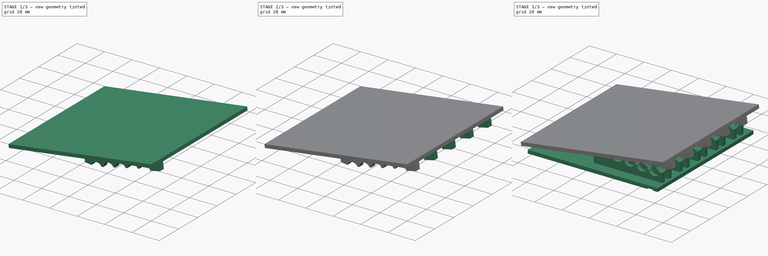
[diagram: build sequence overview — one tinted view per stage of 3, left to right]
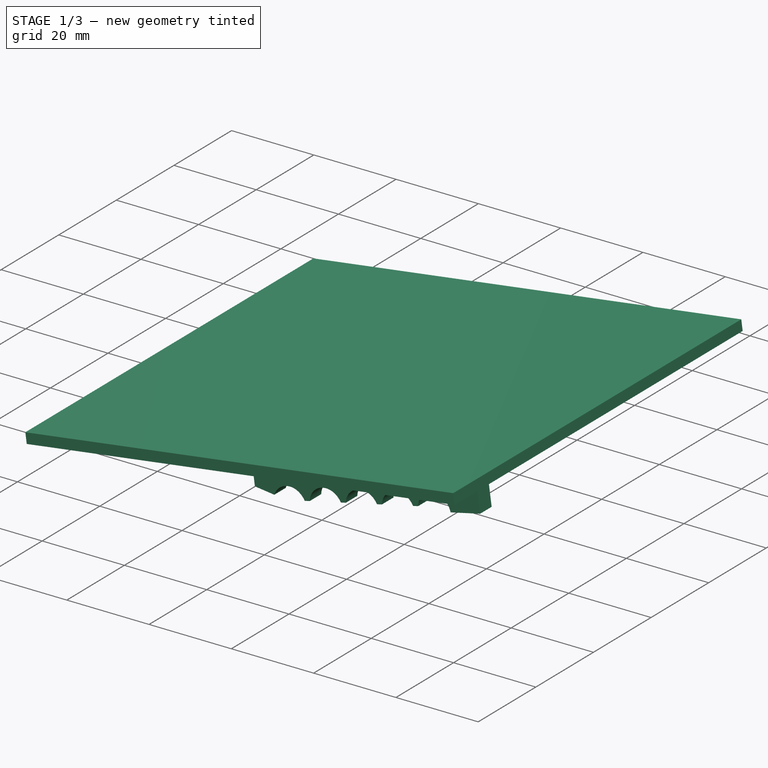
[diagram: stage 1 of 3 — iso view after this stage's code; geometry added in this stage tinted green]
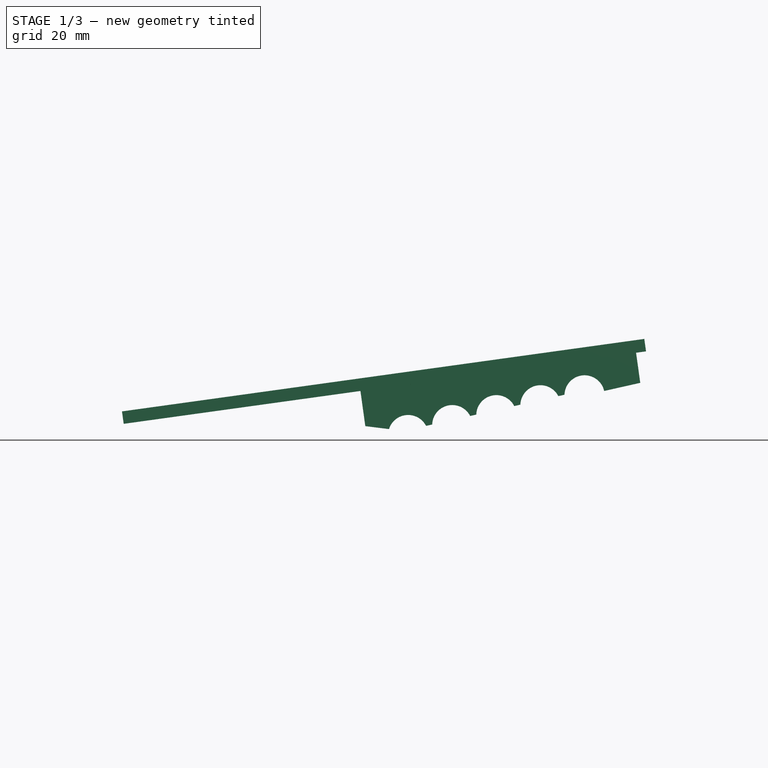
[diagram: stage 1 of 3 — front view after this stage's code; geometry added in this stage tinted green]
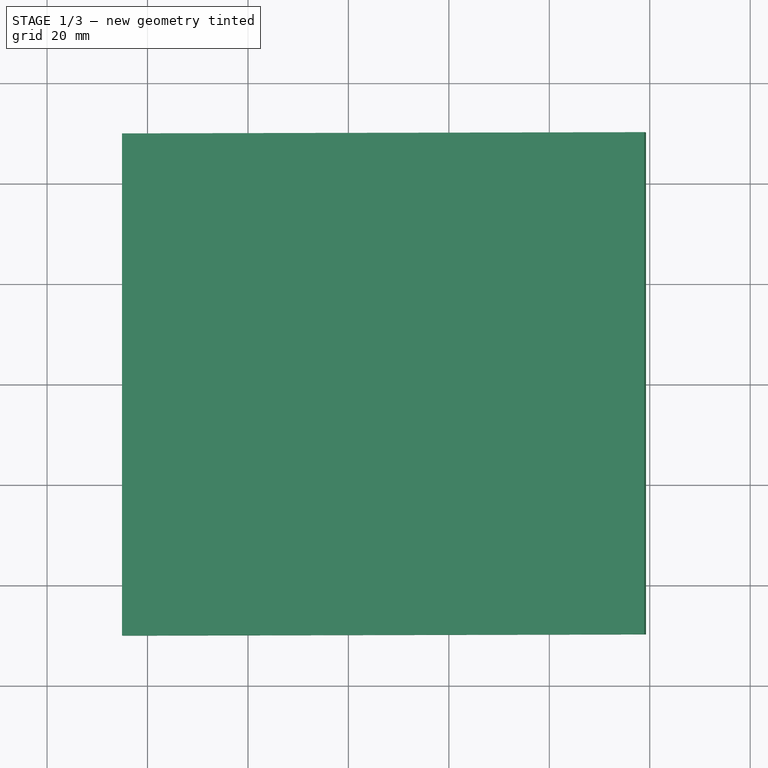
[diagram: stage 1 of 3 — top view after this stage's code; geometry added in this stage tinted green]
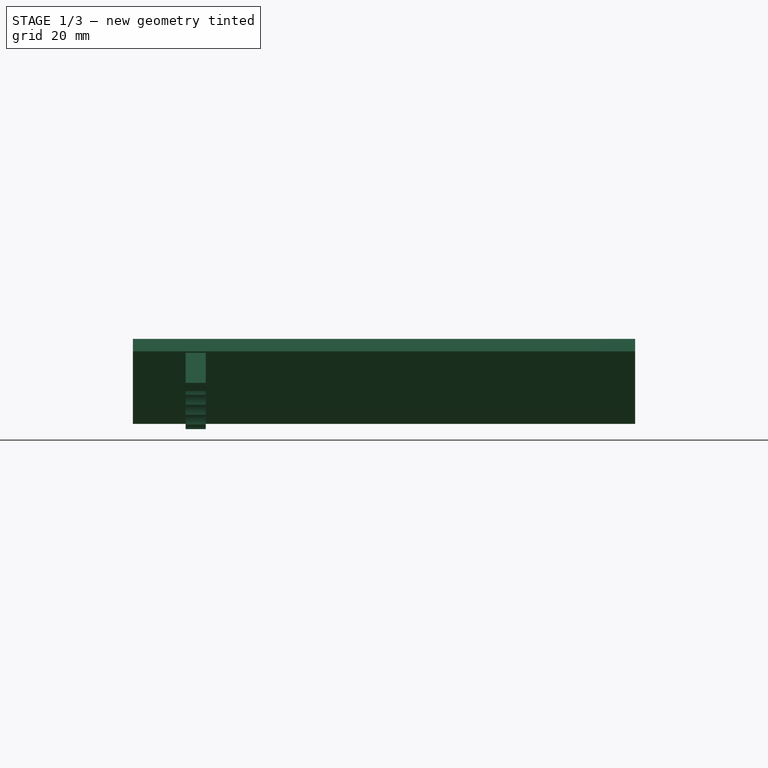
[diagram: stage 1 of 3 — right view after this stage's code; geometry added in this stage tinted green]
FCSTD DOCUMENT  (FreeCAD 2020.12.17R23076 +3024 (Git))
Label: Modular Ramp v3.1 Simulated
License: All rights reserved
LicenseURL: http://en.wikipedia.org/wiki/All_rights_reserved
objects: Sketcher::SketchObject×14, PartDesign::Pad×8, PartDesign::Plane×4, PartDesign::ShapeBinder×3, PartDesign::Body×3, PartDesign::Pocket×3, PartDesign::LinearPattern×2, Spreadsheet::Sheet×1, TechDraw::DrawSVGTemplate×1, TechDraw::DrawPage×1, PartDesign::Mirrored×1, PartDesign::Chamfer×1
note: 66 computed .brp shape members not serialized (recipe doc carries the construction recipe); baked Part::Feature solids carry a one-line shape summary decoded from their .brp

FEATURE [Sketcher::SketchObject] Sketch
  MapMode = 5
  Placement = pos=(0,0,0) rot=(1,0,0;1.5708rad)
  Support = -> [XZ_Plane]
  expr: Constraints[110] = .Constraints.DimDiameter / 2 + 2
  expr: Constraints[13] = Spreadsheet.ThicknessLower
  expr: Constraints[158] = .Constraints.DimDiameter / 2 + 5
  expr: Constraints[162] = .Constraints.DimDiameter / 2 + 5
  expr: Constraints[180] = .Constraints.DimDiameter + 1
  expr: Constraints[38] = Spreadsheet.ThicknessUpper + Spreadsheet.ThicknessLower + 3
  expr: Constraints[81] = .Constraints.DimDiameter + 1
  expr: Constraints[82] = .Constraints.DimDiameter + 1
  expr: Constraints[83] = .Constraints.DimDiameter + 1
  expr: Constraints[84] = Spreadsheet.ThicknessUpper
  sketch-geometry (66):
    g0: LineSegment [constr] StartX=0 StartY=0 StartZ=0 EndX=-10 EndY=0 EndZ=0
    g1: LineSegment StartX=0 StartY=0 StartZ=0 EndX=95 EndY=0 EndZ=0
    g2: LineSegment [constr] StartX=0 StartY=0 StartZ=0 EndX=95 EndY=0 EndZ=0
    g3: LineSegment StartX=95 StartY=0 StartZ=0 EndX=95 EndY=2.5 EndZ=0
    g4: LineSegment StartX=95 StartY=2.5 StartZ=0 EndX=0 EndY=2.5 EndZ=0
    g5: LineSegment StartX=0 StartY=2.5 StartZ=0 EndX=0 EndY=0 EndZ=0
    g6: Circle [constr] CenterX=0 CenterY=2.5 CenterZ=0 NormalX=0 NormalY=0 NormalZ=1 AngleXU=0 Radius=7.5
    g7: LineSegment StartX=-0.13488 StartY=6.99991 StartZ=0 EndX=98.916 EndY=20.7445 EndZ=0
    g8: LineSegment StartX=98.916 StartY=20.7445 StartZ=0 EndX=99.2597 EndY=18.2683 EndZ=0
    g9: LineSegment StartX=99.2597 StartY=18.2683 StartZ=0 EndX=0.208735 EndY=4.52364 EndZ=0
    g10: LineSegment [constr] StartX=0.208735 StartY=4.52364 StartZ=0 EndX=-0.13488 EndY=6.99991 EndZ=0
    g11: Circle [constr] CenterX=7.34847 CenterY=4 CenterZ=0 NormalX=0 NormalY=0 NormalZ=1 AngleXU=0 Radius=4
    g12: Circle CenterX=7.34847 CenterY=4 CenterZ=0 NormalX=0 NormalY=0 NormalZ=1 AngleXU=0 Radius=1
    g13: LineSegment [constr] StartX=7.34847 StartY=4 StartZ=0 EndX=6.79868 EndY=7.96204 EndZ=0
    g14: LineSegment [constr] StartX=7.34847 StartY=4 StartZ=0 EndX=7.34847 EndY=0 EndZ=0
    g15: LineSegment StartX=97.2786 StartY=17.9934 StartZ=0 EndX=98.1106 EndY=11.9981 EndZ=0
    g16: LineSegment [constr] StartX=98.1106 StartY=11.9981 StartZ=0 EndX=51.5603 EndY=1.52434 EndZ=0
    g17: LineSegment StartX=43.3653 StartY=3.37855 StartZ=0 EndX=42.3941 EndY=10.3774 EndZ=0
    g18: LineSegment StartX=42.9381 StartY=2.5 StartZ=0 EndX=42.9381 EndY=9.56593 EndZ=0
    g19: LineSegment [constr] StartX=45.4519 StartY=12.9762 StartZ=0 EndX=93 EndY=9 EndZ=0
    g20: LineSegment StartX=93 StartY=9 StartZ=0 EndX=93 EndY=2.5 EndZ=0
    g21: ArcOfCircle CenterX=87.0209 CenterY=9.5 CenterZ=0 NormalX=0 NormalY=0 NormalZ=1 AngleXU=0 Radius=4 StartAngle=3.31084 EndAngle=6.19976
    g22: ArcOfCircle CenterX=87.0207 CenterY=9.50287 CenterZ=0 NormalX=0 NormalY=0 NormalZ=1 AngleXU=0 Radius=4 StartAngle=0.221313 EndAngle=3.11023
    g23: GeomPoint X=90.9231 Y=10.3809 Z=0
    g24: GeomPoint X=91.007 Y=9.16667 Z=0
    g25: ArcOfCircle CenterX=78.2402 CenterY=7.52727 CenterZ=0 NormalX=0 NormalY=0 NormalZ=1 AngleXU=0 Radius=4 StartAngle=0.473993 EndAngle=3.11023
    g26: ArcOfCircle CenterX=78.0522 CenterY=10.25 CenterZ=0 NormalX=0 NormalY=0 NormalZ=1 AngleXU=0 Radius=4 StartAngle=3.31084 EndAngle=5.94707
    g27: ArcOfCircle CenterX=69.0835 CenterY=11 CenterZ=0 NormalX=0 NormalY=0 NormalZ=1 AngleXU=0 Radius=4 StartAngle=3.31084 EndAngle=5.94707
    g28: ArcOfCircle CenterX=60.1148 CenterY=11.75 CenterZ=0 NormalX=0 NormalY=0 NormalZ=1 AngleXU=0 Radius=4 StartAngle=3.31084 EndAngle=5.94707
    g29: ArcOfCircle CenterX=69.4597 CenterY=5.55168 CenterZ=0 NormalX=0 NormalY=0 NormalZ=1 AngleXU=0 Radius=4 StartAngle=0.473993 EndAngle=3.11023
    g30: ArcOfCircle CenterX=51.8987 CenterY=1.60049 CenterZ=0 NormalX=0 NormalY=0 NormalZ=1 AngleXU=0 Radius=4 StartAngle=0.473993 EndAngle=2.83931
    g31: Circle [constr] CenterX=7.34847 CenterY=4 CenterZ=0 NormalX=0 NormalY=0 NormalZ=1 AngleXU=0 Radius=79.862
    g32: Circle [constr] CenterX=7.34847 CenterY=4 CenterZ=0 NormalX=0 NormalY=0 NormalZ=1 AngleXU=0 Radius=70.9794
    g33: Circle [constr] CenterX=7.34847 CenterY=4 CenterZ=0 NormalX=0 NormalY=0 NormalZ=1 AngleXU=0 Radius=62.1306
    g34: Circle [constr] CenterX=7.34847 CenterY=4 CenterZ=0 NormalX=0 NormalY=0 NormalZ=1 AngleXU=0 Radius=53.3324
    g35: Circle [constr] CenterX=7.34847 CenterY=4 CenterZ=0 NormalX=0 NormalY=0 NormalZ=1 AngleXU=0 Radius=44.6148
    g36: Circle [constr] CenterX=7.34847 CenterY=4 CenterZ=0 NormalX=0 NormalY=0 NormalZ=1 AngleXU=0 Radius=35.6178
    g37: LineSegment StartX=91.007 StartY=9.16667 StartZ=0 EndX=93 EndY=9 EndZ=0
    g38: LineSegment StartX=90.9231 StartY=10.3809 StartZ=0 EndX=98.1106 EndY=11.9981 EndZ=0
    g39: LineSegment [constr] StartX=86.8012 StartY=10.4785 StartZ=0 EndX=87.0207 EndY=9.50287 EndZ=0
    g40: LineSegment [constr] StartX=86.8012 StartY=10.4785 StartZ=0 EndX=65.2732 EndY=5.63472 EndZ=0
    g41: LineSegment StartX=73.0187 StartY=7.37745 StartZ=0 EndX=74.2421 EndY=7.65272 EndZ=0
    g42: LineSegment StartX=81.7992 StartY=9.35305 StartZ=0 EndX=83.0226 EndY=9.62832 EndZ=0
    g43: LineSegment [constr] StartX=46.0072 StartY=11.9262 StartZ=0 EndX=83.078 EndY=8.82623 EndZ=0
    g44: LineSegment [constr] StartX=79.3403 StartY=9.13879 StartZ=0 EndX=79.4236 EndY=10.1353 EndZ=0
    g45: LineSegment StartX=81.8284 StartY=8.93073 StartZ=0 EndX=83.078 EndY=8.82623 EndZ=0
    g46: LineSegment StartX=54.9223 StartY=11.1807 StartZ=0 EndX=56.1719 EndY=11.0762 EndZ=0
    g47: LineSegment StartX=63.891 StartY=10.4307 StartZ=0 EndX=65.1406 EndY=10.3262 EndZ=0
    g48: LineSegment StartX=72.8597 StartY=9.68073 StartZ=0 EndX=74.1093 EndY=9.57623 EndZ=0
    g49: LineSegment [constr] StartX=95.1455 StartY=11.3309 StartZ=0 EndX=94.926 EndY=12.3066 EndZ=0
    g50: LineSegment StartX=65.4617 StartY=5.67713 StartZ=0 EndX=64.2382 EndY=5.40186 EndZ=0
    g51: ArcOfCircle CenterX=60.6792 CenterY=3.57608 CenterZ=0 NormalX=0 NormalY=0 NormalZ=1 AngleXU=0 Radius=4 StartAngle=0.473993 EndAngle=3.11023
    g52: LineSegment StartX=56.6812 StartY=3.70153 StartZ=0 EndX=55.4577 EndY=3.42626 EndZ=0
    g53: GeomPoint X=48.0801 Y=2.7913 Z=0
    g54: LineSegment [constr] StartX=48.0801 StartY=2.7913 StartZ=0 EndX=48.5191 EndY=0.840082 EndZ=0
    g55: LineSegment StartX=48.0801 StartY=2.7913 StartZ=0 EndX=43.3653 EndY=3.37855 EndZ=0
    g56: GeomPoint X=51.3087 Y=11.6144 Z=0
    g57: GeomPoint X=51.9381 Y=2.5 Z=0
    g58: LineSegment [constr] StartX=51.8987 StartY=1.60049 StartZ=0 EndX=50.5242 EndY=11.5056 EndZ=0
    g59: LineSegment [constr] StartX=87.0207 StartY=9.50287 StartZ=0 EndX=86.0585 EndY=16.4364 EndZ=0
    g60: LineSegment StartX=47.5274 StartY=10.7956 StartZ=0 EndX=42.9381 EndY=9.56593 EndZ=0
    g61: ArcOfCircle CenterX=51.1461 CenterY=12.5 CenterZ=0 NormalX=0 NormalY=0 NormalZ=1 AngleXU=0 Radius=4 StartAngle=3.58176 EndAngle=5.94707
    g62: LineSegment [constr] StartX=47.5274 StartY=10.7956 StartZ=0 EndX=47.694 EndY=12.7887 EndZ=0
    g63: LineSegment StartX=0.208735 StartY=4.52364 StartZ=0 EndX=-4.74381 EndY=3.83641 EndZ=0
    g64: LineSegment StartX=-4.74381 StartY=3.83641 StartZ=0 EndX=-5.08743 EndY=6.31268 EndZ=0
    g65: LineSegment StartX=-0.13488 StartY=6.99991 StartZ=0 EndX=-5.08743 EndY=6.31268 EndZ=0
  constraints (192):
    c: Coincident(g0,g-1)
    c: PointOnObject(g0,g-1)
    c: Coincident(g1,g-1)
    c: Horizontal(g1)
    c: DistanceX(g1,g1) = 95
    c: Coincident(g2,g3)
    c: Coincident(g3,g4)
    c: Coincident(g4,g5)
    c: Coincident(g5,g2)
    c: Horizontal(g4)
    c: Vertical(g3)
    c: Vertical(g5)
    c: Coincident(g2,g1)
    c: DistanceY(g3,g3) = 2.5
    c: Coincident(g2,g1)
    c: Coincident(g6,g4)
    c: Diameter(g6) = 15
    c: DistanceX(g0,g0) = 10
    c: Distance(g7) = 100
    c: Coincident(g8,g7)
    c: Coincident(g9,g8)
    c: Coincident(g10,g9)
    c: Coincident(g10,g7)
    c: Perpendicular(g7,g10)
    c: Perpendicular(g8,g9)
    c: Perpendicular(g7,g8)
    c: PointOnObject(g11,g6)
    c: Tangent(g11,g7)
    c: Tangent(g11,g1)
    c: Coincident(g12,g11)
    c: Diameter(g12) = 2
    c: Coincident(g13,g12)
    c: PointOnObject(g13,g7)
    c: Coincident(g14,g12)
    c: PointOnObject(g14,g1)
    c: Perpendicular(g7,g13)
    c: Perpendicular(g1,g14)
    c: Distance(g13,g7) = 7
    c: Diameter(g11) = 8
    c: DistanceY(g1,g7) = 20.7445
    c: PointOnObject(g15,g9)
    c: Coincident(g15,g16)
    c: PointOnObject(g17,g9)
    c: PointOnObject(g18,g4)
    c: Vertical(g18)
    c: Coincident(g19,g20)
    c: PointOnObject(g20,g4)
    c: Perpendicular(g9,g17)
    c: Perpendicular(g4,g20)
    c: Perpendicular(g9,g15)
    c: Equal(g16,g19)
    c: PointOnObject(g21,g19)
    c: PointOnObject(g22,g16)
    c: Diameter(g21) = 8  'DimDiameter'
    c: Equal(g22,g21)
    c: PointOnObject(g23,g22)
    c: PointOnObject(g24,g21)
    c: PointOnObject(g23,g16)
    c: PointOnObject(g24,g19)
    c: PointOnObject(g25,g16)
    c: Equal(g22,g25)
    c: Equal(g21,g26) = 2
    c: PointOnObject(g26,g19)
    c: Equal(g21,g27) = 2
    c: Equal(g27,g28) = 2
    c: PointOnObject(g28,g19)
    c: PointOnObject(g27,g19)
    c: PointOnObject(g29,g16)
    c: Equal(g29,g25)
    c: PointOnObject(g30,g16)
    c: Coincident(g31,g12)
    c: PointOnObject(g21,g31)
    c: PointOnObject(g22,g31)
    c: Coincident(g32,g12)
    c: PointOnObject(g26,g32)
    c: Coincident(g33,g12)
    c: PointOnObject(g27,g33)
    c: Coincident(g34,g12)
    c: PointOnObject(g28,g34)
    c: Coincident(g35,g12)
    c: Coincident(g36,g12)
    c: Distance(g21,g26) = 9
    c: Distance(g26,g27) = 9
    c: Distance(g27,g28) = 9
    c: Distance(g8) = 2.5
    c: Coincident(g37,g20)
    c: PointOnObject(g22,g16)
    c: Coincident(g38,g22)
    c: Coincident(g38,g15)
    c: Coincident(g39,g22)
    c: Coincident(g40,g39)
    c: Perpendicular(g39,g40)
    c: Parallel(g40,g16)
    c: Distance(g39,g22) = 1
    c: PointOnObject(g25,g32)
    c: PointOnObject(g29,g33)
    c: PointOnObject(g22,g40)
    c: PointOnObject(g25,g40)
    c: PointOnObject(g25,g40)
    c: PointOnObject(g29,g40)
    c: PointOnObject(g29,g40)
    c: PointOnObject(g30,g40)
    c: Coincident(g41,g29)
    c: Coincident(g41,g25)
    c: Coincident(g42,g25)
    c: Coincident(g42,g22)
    c: Coincident(g37,g24)
    c: PointOnObject(g21,g37)
    c: Parallel(g43,g19)
    c: DistanceX(g20,g3) = 2
    c: Distance(g20,g21) = 6
    c: PointOnObject(g44,g43)
    c: PointOnObject(g44,g19)
    c: Perpendicular(g19,g44)
    c: PointOnObject(g45,g43)
    c: PointOnObject(g45,g43)
    c: PointOnObject(g45,g21)
    c: PointOnObject(g45,g26)
    c: Coincident(g21,g43)
    c: PointOnObject(g26,g43)
    c: PointOnObject(g28,g43)
    c: PointOnObject(g61,g43)
    c: PointOnObject(g28,g43)
    c: PointOnObject(g27,g43)
    c: PointOnObject(g26,g43)
    c: PointOnObject(g27,g43)
    c: Coincident(g46,g61)
    c: Coincident(g46,g28)
    c: Coincident(g47,g28)
    c: Coincident(g47,g27)
    c: Coincident(g48,g27)
    c: Coincident(g48,g26)
    c: Distance(g44) = 1
    c: Distance(g8,g15) = 2
    c: PointOnObject(g49,g16)
    c: PointOnObject(g49,g40)
    c: Perpendicular(g16,g49)
    c: Coincident(g50,g29)
    c: Coincident(g52,g30)
    c: PointOnObject(g30,g35)
    c: PointOnObject(g51,g16)
    c: PointOnObject(g51,g50)
    c: PointOnObject(g51,g34)
    c: Coincident(g50,g51)
    c: Tangent(g50,g52)
    c: PointOnObject(g52,g51)
    c: Equal(g29,g51)
    c: PointOnObject(g53,g30)
    c: Coincident(g54,g53)
    c: PointOnObject(g54,g16)
    c: Perpendicular(g16,g54)
    c: Distance(g54) = 2
    c: Coincident(g55,g53)
    c: Coincident(g17,g55)
    c: PointOnObject(g30,g54)
    c: Equal(g51,g30)
    c: PointOnObject(g56,g35)
    c: PointOnObject(g56,g9)
    c: Distance(g56,g17) = 9
    c: Angle(g55,g9) = 0.261799
    c: PointOnObject(g57,g35)
    c: PointOnObject(g57,g4)
    c: DistanceX(g18,g57) = 9
    c: Coincident(g58,g30)
    c: PointOnObject(g58,g9)
    c: Perpendicular(g9,g58)
    c: Distance(g58) = 10
    c: Coincident(g59,g22)
    c: PointOnObject(g59,g9)
    c: Perpendicular(g9,g59)
    c: Distance(g59) = 7
    c: DistanceY(g3,g21) = 7
    c: Coincident(g18,g60)
    c: Coincident(g61,g60)
    c: PointOnObject(g61,g35)
    c: PointOnObject(g61,g19)
    c: Coincident(g62,g60)
    c: PointOnObject(g62,g19)
    c: Perpendicular(g19,g62)
    c: Distance(g62) = 2
    c: Distance(g61,g28) = 9
    c: Equal(g61,g28)
    c: DistanceY(g57,g61) = 10
    c: Angle(g4,g60) = 0.261799
    c: Coincident(g63,g9)
    c: Coincident(g64,g63)
    c: Coincident(g65,g7)
    c: Coincident(g65,g64)
    c: Parallel(g7,g65)
    c: Parallel(g9,g63)
    c: Perpendicular(g64,g65)
    c: Distance(g65) = 5
FEATURE [Sketcher::SketchObject] Sketch001
  MapMode = 5
  Placement = pos=(0,0,0) rot=(1,0,0;1.5708rad)
  Support = -> [XZ_Plane001]
  expr: Constraints[11] = Sketch.Constraints[13]
  expr: Constraints[2] = Sketch.Constraints[4]
  sketch-geometry (5):
    g0: LineSegment StartX=0 StartY=0 StartZ=0 EndX=95 EndY=0 EndZ=0
    g1: LineSegment [constr] StartX=0 StartY=0 StartZ=0 EndX=95 EndY=0 EndZ=0
    g2: LineSegment StartX=95 StartY=0 StartZ=0 EndX=95 EndY=2.5 EndZ=0
    g3: LineSegment StartX=95 StartY=2.5 StartZ=0 EndX=0 EndY=2.5 EndZ=0
    g4: LineSegment StartX=0 StartY=2.5 StartZ=0 EndX=0 EndY=0 EndZ=0
  constraints (13):
    c: Coincident(g0,g-1)
    c: Horizontal(g0)
    c: DistanceX(g0,g0) = 95
    c: Coincident(g1,g2)
    c: Coincident(g2,g3)
    c: Coincident(g3,g4)
    c: Coincident(g4,g1)
    c: Horizontal(g3)
    c: Vertical(g2)
    c: Vertical(g4)
    c: Coincident(g1,g0)
    c: DistanceY(g2,g2) = 2.5
    c: Coincident(g1,g0)
FEATURE [Spreadsheet::Sheet] Spreadsheet
  PythonMode = false
  cells = A1=DepthOfPad; B1(DepthOfPad)==100mm; A2=ThicknessUpper; B2(ThicknessUpper)==2.5mm; A3=ThicknessLower; B3(ThicknessLower)==2.5mm; A4=ThicknessRibTop; B4(ThicknessRibTop)==4mm; A5=ThicknessSwivel; B5(ThicknessSwivel)==8mm; A6=ThicknessRibBottom; B6(ThicknessRibBottom)==10mm; A7=RibPatternDistance; B7(RibPatternDistance)==32mm; A8=RibQuantity; B8=5; A9=RibDistanceFull; B9(RibDistanceFull)==75mm
FEATURE [PartDesign::Pad] Pad
  ClaimChildren = false
  Direction = (1,1,1)
  Fit = 0
  FitJoin = 0
  InnerFit = 0
  InnerFitJoin = 0
  InnerTaperAngle = 0
  InnerTaperAngleRev = 0
  Length = 100
  Length2 = 100
  Midplane = true
  NewSolid = false
  Placement = pos=(0,0,0) rot=(1,0,0;1.5708rad)
  Profile = -> Sketch001
  Suppress = false
  Type = 0
  expr: Length = Spreadsheet.DepthOfPad
FEATURE [PartDesign::ShapeBinder] ShapeBinder  label="ShapeBinderUpper"
  Placement = pos=(0,0,0) rot=(1,0,0;1.5708rad)
  Support = -> [Sketch]
  TraceSupport = false
FEATURE [Sketcher::SketchObject] Sketch003
  ExternalGeometry = -> [ShapeBinder]
  MapMode = 5
  Placement = pos=(0,0,0) rot=(1,0,0;1.5708rad)
  Support = -> [XZ_Plane002]
FEATURE [PartDesign::Pad] Pad002
  ClaimChildren = false
  Direction = (1,1,1)
  Fit = 0
  FitJoin = 0
  InnerFit = 0
  InnerFitJoin = 0
  InnerTaperAngle = 0
  InnerTaperAngleRev = 0
  Length = 100
  Length2 = 100
  Midplane = true
  NewSolid = false
  Placement = pos=(0,0,0) rot=(1,0,0;1.5708rad)
  Profile = -> Sketch003
  Suppress = false
  Type = 0
  expr: Length = Spreadsheet.DepthOfPad
FEATURE [PartDesign::Plane] DatumPlane
  AttachmentOffset = pos=(0,0,37.5) rot=(0,0,1;0rad)
  Length = 10
  MapMode = 5
  MinimumLength = 10
  MinimumWidth = 10
  Placement = pos=(0,-37.5,-8.3e-15) rot=(1,0,0;1.5708rad)
  ResizeMode = 0
  Support = -> [XZ_Plane]
  Width = 10
  expr: .AttachmentOffset.Base.z = Spreadsheet.RibDistanceFull / 2
FEATURE [PartDesign::Body] Body
  ExportMode = 0
  Group = -> [Sketch,DatumPlane]
  Origin = -> Origin
  SingleSolid = true
  _ExportChildren = -> [Sketch,DatumPlane]
  _GroupVersion = 1
FEATURE [PartDesign::Plane] ReferenceDatumPlane
  Length = 60
  MapMode = 5
  MinimumLength = 10
  MinimumWidth = 10
  Placement = pos=(0,-37.5,-8.3e-15) rot=(1,0,0;1.5708rad)
  ResizeMode = 0
  Support = -> [DatumPlane]
  Width = 10
FEATURE [PartDesign::ShapeBinder] ShapeBinder001
  Placement = pos=(0,0,0) rot=(1,0,0;1.5708rad)
  Support = -> [Sketch]
  TraceSupport = false
FEATURE [PartDesign::Plane] ReferenceDatumPlane001
  Length = 10
  MapMode = 5
  MinimumLength = 10
  MinimumWidth = 10
  Placement = pos=(0,-37.5,-8.3e-15) rot=(1,0,0;1.5708rad)
  ResizeMode = 0
  Support = -> [DatumPlane]
  Width = 10
FEATURE [Sketcher::SketchObject] Sketch009
  ExternalGeometry = -> [ShapeBinder001,ShapeBinder]
  MapMode = 5
  Placement = pos=(0,-37.5,-8.3e-15) rot=(1,0,0;1.5708rad)
  Support = -> [ReferenceDatumPlane001]
  sketch-geometry (1):
    g0: LineSegment StartX=42.3941 StartY=10.3774 StartZ=0 EndX=97.2786 EndY=17.9934 EndZ=0
  constraints (2):
    c: Coincident(g0,g-16)
    c: Coincident(g0,g-13)
FEATURE [PartDesign::Pad] Pad005
  BaseFeature = -> Pad002
  ClaimChildren = false
  Direction = (1,1,1)
  Fit = 0
  FitJoin = 0
  InnerFit = 0
  InnerFitJoin = 0
  InnerTaperAngle = 0
  InnerTaperAngleRev = 0
  Length = 4
  Length2 = 100
  Midplane = true
  NewSolid = false
  Placement = pos=(0,0,0) rot=(1,0,0;1.5708rad)
  Profile = -> Sketch009
  Suppress = false
  Type = 0
  expr: Length = Spreadsheet.ThicknessRibTop
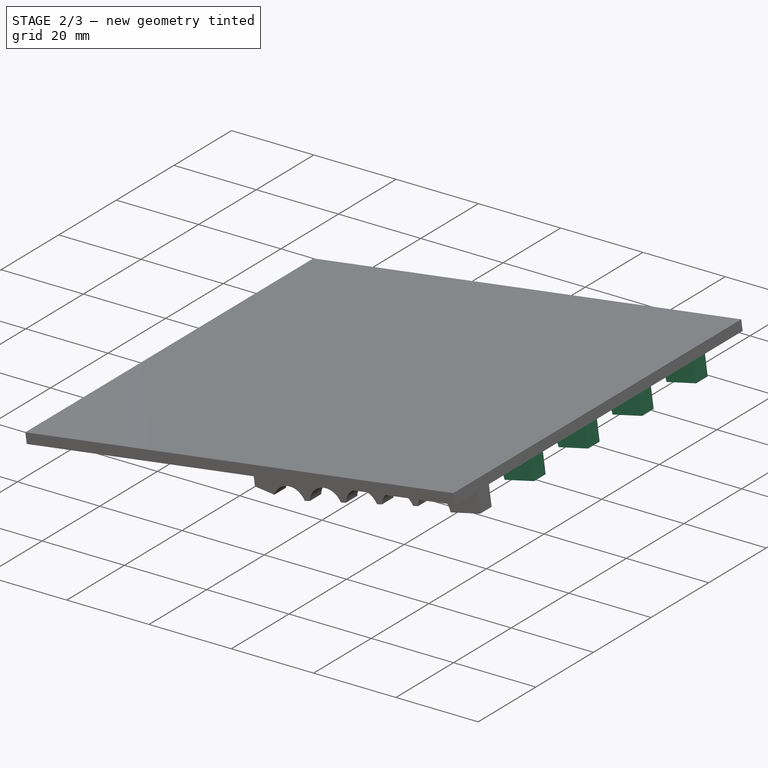
[diagram: stage 2 of 3 — iso view after this stage's code; geometry added in this stage tinted green]
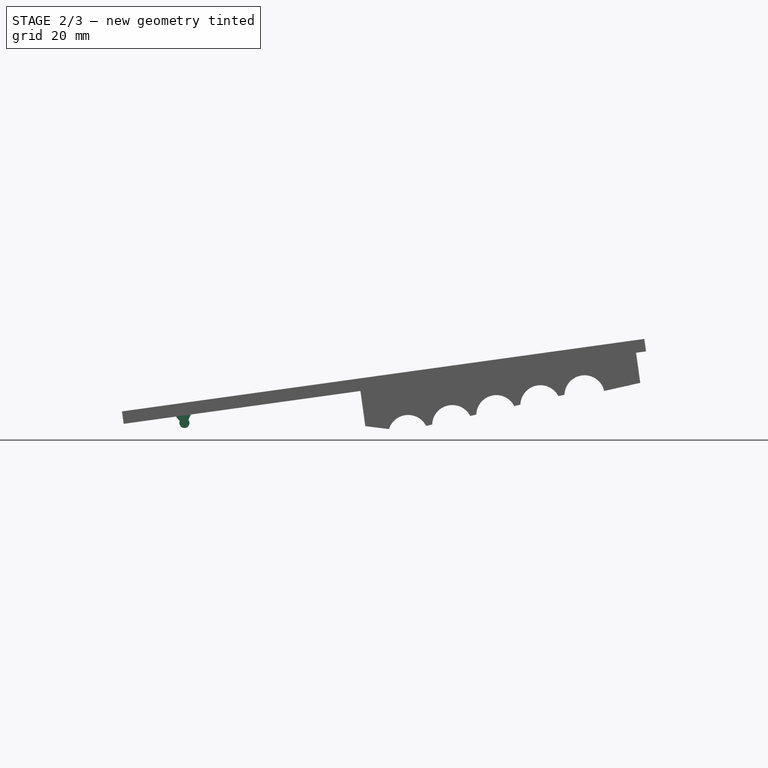
[diagram: stage 2 of 3 — front view after this stage's code; geometry added in this stage tinted green]
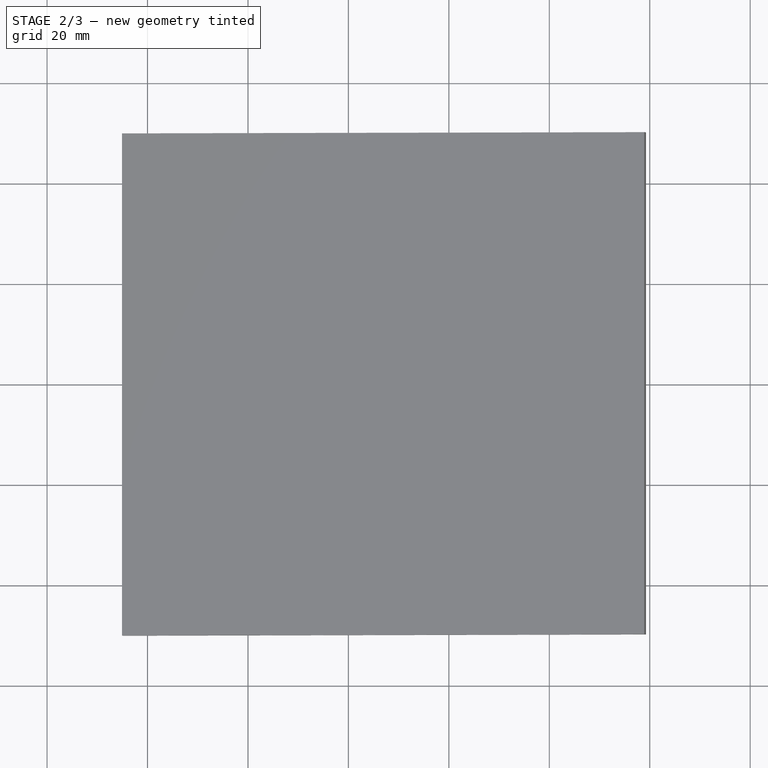
[diagram: stage 2 of 3 — top view after this stage's code; geometry added in this stage tinted green]
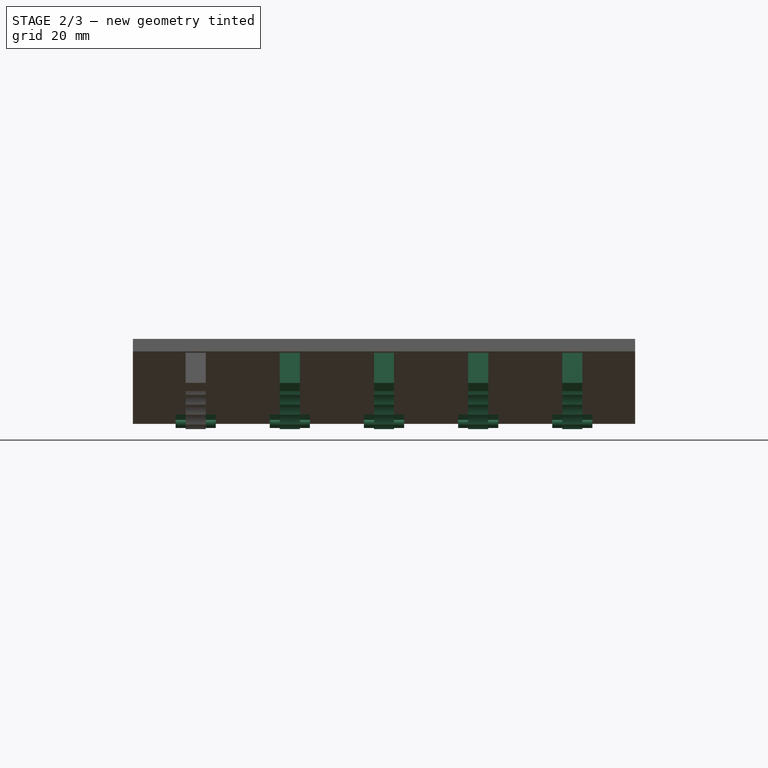
[diagram: stage 2 of 3 — right view after this stage's code; geometry added in this stage tinted green]
FEATURE [Sketcher::SketchObject] Sketch010
  ExternalGeometry = -> [ShapeBinder001,ShapeBinder]
  MapMode = 5
  Placement = pos=(0,-37.5,-8.3e-15) rot=(1,0,0;1.5708rad)
  Support = -> [ReferenceDatumPlane001]
  sketch-geometry (8):
    g0: LineSegment StartX=6.42194 StartY=4.37622 StartZ=0 EndX=5.65654 EndY=5.27959 EndZ=0
    g1: LineSegment StartX=8.13755 StartY=4.61429 StartZ=0 EndX=8.62806 EndY=5.69193 EndZ=0
    g2: ArcOfCircle CenterX=7.34847 CenterY=4 CenterZ=0 NormalX=0 NormalY=0 NormalZ=1 AngleXU=0 Radius=1 StartAngle=2.75588 EndAngle=6.94467
    g3: LineSegment [constr] StartX=7.06943 StartY=6.0109 StartZ=0 EndX=7.43713 EndY=3.36103 EndZ=0
    g4: LineSegment StartX=5.65654 StartY=5.27959 StartZ=0 EndX=8.62806 EndY=5.69193 EndZ=0
    g5: GeomPoint X=7.27975 Y=4.49525 Z=0
    g6: LineSegment [constr] StartX=6.42194 StartY=4.37622 StartZ=0 EndX=8.13755 EndY=4.61429 EndZ=0
    g7: GeomPoint X=7.1423 Y=5.48576 Z=0
  constraints (18):
    c: Coincident(g2,g-4)
    c: Coincident(g1,g2)
    c: PointOnObject(g1,g-4)
    c: Coincident(g0,g2)
    c: Perpendicular(g-5,g3)
    c: Coincident(g4,g0)
    c: Coincident(g4,g1)
    c: PointOnObject(g0,g-5)
    c: Symmetric(g1,g0,g3)
    c: Symmetric(g1,g0,g3)
    c: Coincident(g6,g0)
    c: Coincident(g6,g1)
    c: PointOnObject(g5,g6)
    c: PointOnObject(g7,g4)
    c: PointOnObject(g7,g3)
    c: Distance(g7,g5) = 1
    c: PointOnObject(g5,g3)
    c: Distance(g4) = 3
FEATURE [PartDesign::Pad] Pad006
  BaseFeature = -> Pad005
  ClaimChildren = false
  Direction = (1,1,1)
  Fit = 0
  FitJoin = 0
  InnerFit = 0
  InnerFitJoin = 0
  InnerTaperAngle = 0
  InnerTaperAngleRev = 0
  Length = 8
  Length2 = 100
  Midplane = true
  NewSolid = false
  Placement = pos=(0,0,0) rot=(1,0,0;1.5708rad)
  Profile = -> Sketch010
  Suppress = false
  Type = 0
  expr: Length = Spreadsheet.ThicknessSwivel
FEATURE [PartDesign::ShapeBinder] ShapeBinder002  label="ShapeBinderLower"
  Placement = pos=(0,0,0) rot=(1,0,0;1.5708rad)
  Support = -> [Sketch]
  TraceSupport = false
FEATURE [Sketcher::SketchObject] Sketch004
  ExternalGeometry = -> [ShapeBinder002]
  MapMode = 5
  Placement = pos=(0,-37.5,-8.3e-15) rot=(1,0,0;1.5708rad)
  Support = -> [DatumPlane]
  sketch-geometry (11):
    g0: ArcOfCircle CenterX=7.34847 CenterY=4 CenterZ=0 NormalX=0 NormalY=0 NormalZ=1 AngleXU=0 Radius=1.05 StartAngle=3.3766 EndAngle=6.32743
    g1: LineSegment StartX=9.09536 StartY=4.14453 StartZ=0 EndX=9.84847 EndY=2.5 EndZ=0
    g2: LineSegment StartX=9.84847 StartY=2.5 StartZ=0 EndX=7.34847 EndY=2.5 EndZ=0
    g3: LineSegment StartX=7.34847 StartY=2.5 StartZ=0 EndX=4.84847 EndY=2.5 EndZ=0
    g4: LineSegment StartX=4.84847 StartY=2.5 StartZ=0 EndX=5.62942 EndY=3.65742 EndZ=0
    g5: LineSegment StartX=5.62942 StartY=3.65742 StartZ=0 EndX=6.32733 EndY=3.75551 EndZ=0
    g6: LineSegment [constr] StartX=7.34847 StartY=4 StartZ=0 EndX=9.75336 EndY=4.33798 EndZ=0
    g7: LineSegment [constr] StartX=10.4169 StartY=4.33025 StartZ=0 EndX=3.92871 EndY=3.4184 EndZ=0
    g8: LineSegment [constr] StartX=7.34847 StartY=4 StartZ=0 EndX=3.83988 EndY=3.5069 EndZ=0
    g9: LineSegment StartX=8.39744 StartY=4.04644 StartZ=0 EndX=9.09536 EndY=4.14453 EndZ=0
    g10: LineSegment [constr] StartX=7.34847 StartY=4 StartZ=0 EndX=7.36239 EndY=3.90097 EndZ=0
  constraints (31):
    c: Diameter(g0) = 2.1
    c: Coincident(g1,g2)
    c: Coincident(g2,g3)
    c: Coincident(g3,g4)
    c: Coincident(g4,g5)
    c: Coincident(g0,g5)
    c: Equal(g2,g3)
    c: Vertical(g0,g2)
    c: DistanceX(g3,g1) = 5
    c: Coincident(g6,g0)
    c: Coincident(g8,g0)
    c: Parallel(g6,g8)
    c: Parallel(g7,g8)
    c: Parallel(g5,g7)
    c: Coincident(g9,g0)
    c: Coincident(g9,g1)
    c: PointOnObject(g0,g7)
    c: Coincident(g10,g0)
    c: PointOnObject(g10,g7)
    c: Perpendicular(g7,g10)
    c: Parallel(g7,g9)
    c: PointOnObject(g0,g7)
    c: Distance(g4,g1) = 3.5
    c: Equal(g5,g9)
    c: Angle(g2,g6) = 0.139626
    c: Parallel(g2,g3)
    c: PointOnObject(g1,g-3)
    c: PointOnObject(g3,g-3)
    c: Coincident(g0,g-4)
    c: Distance(g10) = 0.1
    c: Coincident(g0,g-5)
FEATURE [Sketcher::SketchObject] Sketch005
  ExternalGeometry = -> [ShapeBinder002]
  MapMode = 5
  Placement = pos=(0,-37.5,-8.3e-15) rot=(1,0,0;1.5708rad)
  Support = -> [DatumPlane]
  sketch-geometry (1):
    g0: LineSegment StartX=42.9381 StartY=2.5 StartZ=0 EndX=93 EndY=2.5 EndZ=0
  constraints (2):
    c: Coincident(g0,g-3)
    c: Coincident(g0,g-15)
FEATURE [Sketcher::SketchObject] Sketch007
  ExternalGeometry = -> [ShapeBinder002]
  MapMode = 5
  Placement = pos=(0,-37.5,-8.3e-15) rot=(1,0,0;1.5708rad)
  Support = -> [DatumPlane]
  sketch-geometry (4):
    g0: LineSegment StartX=95 StartY=17.5 StartZ=0 EndX=95 EndY=2.5 EndZ=0
    g1: LineSegment StartX=35 StartY=2.5 StartZ=0 EndX=35 EndY=12.5 EndZ=0
    g2: LineSegment StartX=95 StartY=17.5 StartZ=0 EndX=35 EndY=12.5 EndZ=0
    g3: LineSegment StartX=35 StartY=2.5 StartZ=0 EndX=95 EndY=2.5 EndZ=0
  constraints (11):
    c: Coincident(g2,g1)
    c: Coincident(g0,g-3)
    c: Perpendicular(g0,g-3)
    c: PointOnObject(g1,g-3)
    c: Distance(g0,g1) = 60
    c: Perpendicular(g-3,g1)
    c: Coincident(g2,g0)
    c: Distance(g0) = 15
    c: Distance(g1) = 10
    c: Coincident(g3,g1)
    c: Coincident(g3,g0)
FEATURE [Sketcher::SketchObject] Sketch012
  ExternalGeometry = -> [ShapeBinder]
  MapMode = 5
  Placement = pos=(0,-50,-1.11e-14) rot=(1,0,0;1.5708rad)
  Support = -> [Pad006]
  sketch-geometry (5):
    g0: LineSegment [constr] StartX=7.34847 StartY=4 StartZ=0 EndX=6.79868 EndY=7.96204 EndZ=0
    g1: LineSegment StartX=86.0394 StartY=18.9577 StartZ=0 EndX=90.0015 EndY=19.5075 EndZ=0
    g2: LineSegment StartX=86.0394 StartY=18.9577 StartZ=0 EndX=85.9707 EndY=19.453 EndZ=0
    g3: LineSegment StartX=85.9707 StartY=19.453 StartZ=0 EndX=89.9327 EndY=20.0028 EndZ=0
    g4: LineSegment StartX=89.9327 StartY=20.0028 StartZ=0 EndX=90.0015 EndY=19.5075 EndZ=0
  constraints (15):
    c: PointOnObject(g1,g-3)
    c: PointOnObject(g1,g-3)
    c: Coincident(g0,g-4)
    c: Perpendicular(g-3,g0)
    c: PointOnObject(g0,g-3)
    c: Distance(g1,g0) = 80
    c: Coincident(g2,g3)
    c: Coincident(g3,g4)
    c: Coincident(g4,g1)
    c: Perpendicular(g3,g4)
    c: Perpendicular(g2,g3)
    c: Distance(g4) = 0.5
    c: Perpendicular(g2,g1)
    c: Distance(g1) = 4
    c: Coincident(g2,g1)
FEATURE [PartDesign::Pocket] Pocket002
  BaseFeature = -> Pad006
  ClaimChildren = false
  Fit = 0
  FitJoin = 0
  InnerFit = 0
  InnerFitJoin = 0
  InnerTaperAngle = 0
  InnerTaperAngleRev = 0
  Length = 5
  Length2 = 100
  NewSolid = false
  Placement = pos=(0,0,0) rot=(1,0,0;1.5708rad)
  Profile = -> Sketch012
  Suppress = false
  Type = 1
FEATURE [PartDesign::LinearPattern] LinearPattern001
  BaseFeature = -> Pocket002
  CopyShape = true
  Direction = -> Y_Axis002
  Length = 75
  NewSolid = false
  Occurrences = 5
  OriginalSubs = -> [Pad005,Pad006]
  Originals = -> [Pad005,Pad006]
  Placement = pos=(0,0,0) rot=(1,0,0;1.5708rad)
  SubTransform = true
  Suppress = false
  expr: Length = Spreadsheet.RibDistanceFull
  expr: Occurrences = 5
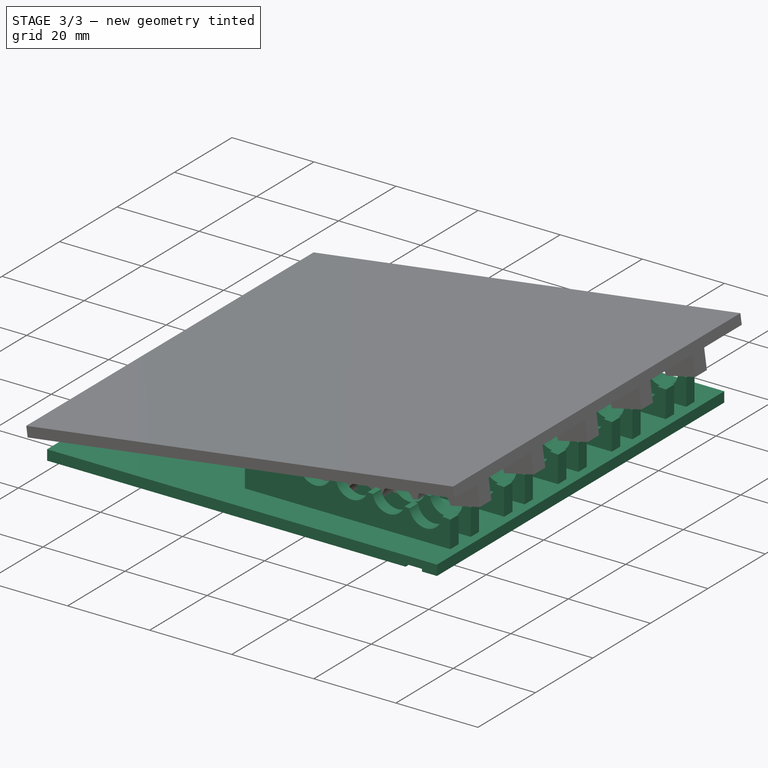
[diagram: stage 3 of 3 — iso view after this stage's code; geometry added in this stage tinted green]
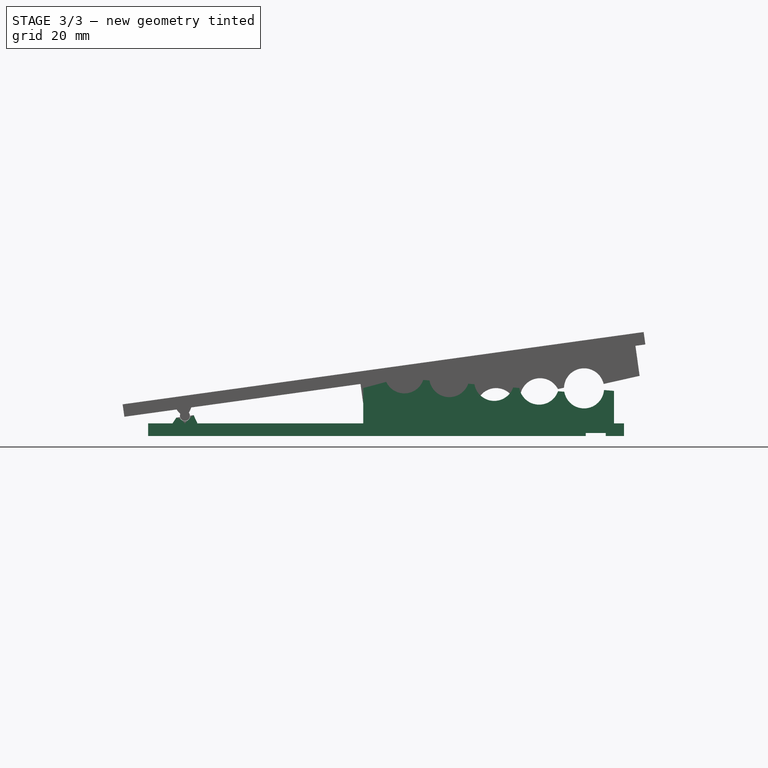
[diagram: stage 3 of 3 — front view after this stage's code; geometry added in this stage tinted green]
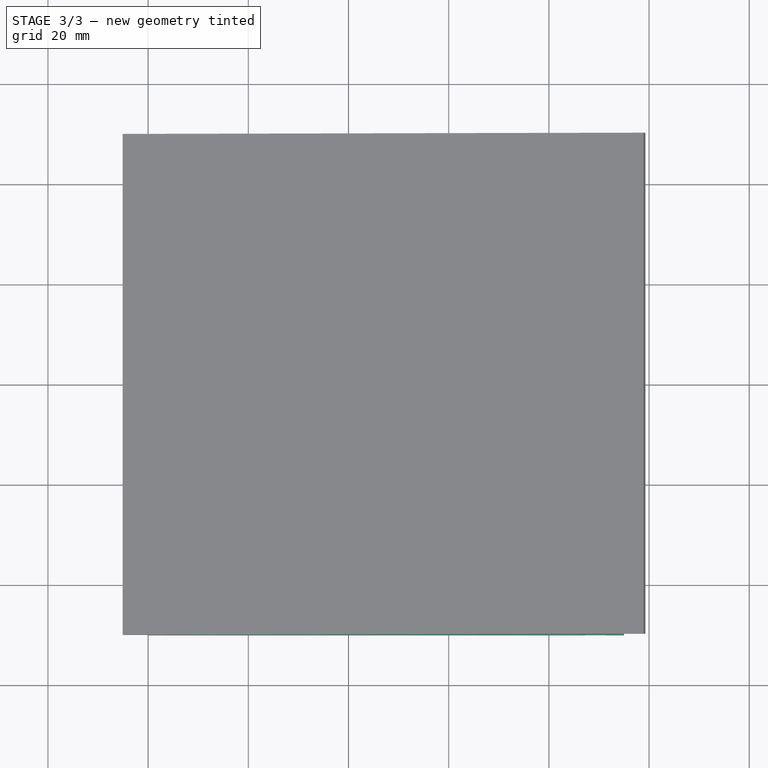
[diagram: stage 3 of 3 — top view after this stage's code; geometry added in this stage tinted green]
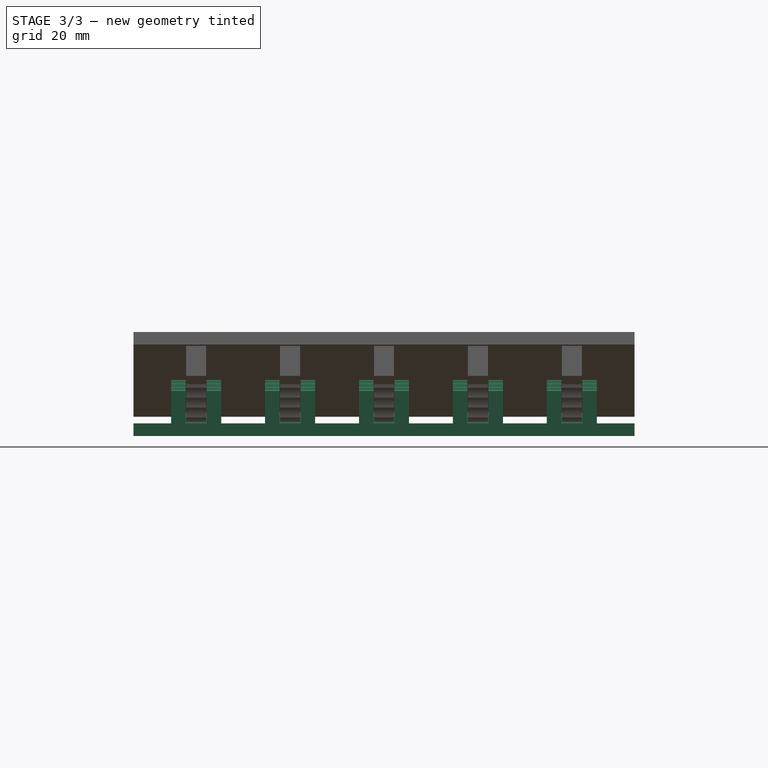
[diagram: stage 3 of 3 — right view after this stage's code; geometry added in this stage tinted green]
FEATURE [TechDraw::DrawSVGTemplate] Template
  EditableTexts = Designed_by_Name=Designed by Name; Drawing_number=Drawing number; FC-Date=Date; FC-SC=Scale; FC-SH=Sheet; FC-Title=Title; Subtitle=Subtitle; Weight=Weight
  Height = 210
  Orientation = 1
  Width = 297
FEATURE [TechDraw::DrawPage] Page
  KeepUpdated = true
  NextBalloonIndex = 1
  ProjectionType = 0
  Template = -> Template
FEATURE [Sketcher::SketchObject] Sketch008
  MapMode = 5
  Placement = pos=(0,-37.5,-8.3e-15) rot=(1,0,0;1.5708rad)
  Support = -> [DatumPlane]
FEATURE [PartDesign::Plane] DatumPlane001
  AttachmentOffset = pos=(0,0,50) rot=(0,0,1;0rad)
  Length = 100.881
  MapMode = 2
  MinimumLength = 10
  MinimumWidth = 10
  Placement = pos=(0,-50,-1.11e-14) rot=(1,0,0;1.5708rad)
  ResizeMode = 0
  Support = -> [XZ_Plane002]
  Width = 39.2215
  expr: .AttachmentOffset.Base.y = 0
  expr: .AttachmentOffset.Base.z = Spreadsheet.DepthOfPad / 2
FEATURE [Sketcher::SketchObject] Sketch013
  ExternalGeometry = -> [ShapeBinder001]
  MapMode = 5
  Placement = pos=(0,-50,-1.11e-14) rot=(1,0,0;1.5708rad)
  Support = -> [DatumPlane001]
  expr: Constraints[17] = Spreadsheet.ThicknessUpper
  sketch-geometry (6):
    g0: LineSegment StartX=8.13281 StartY=5.62321 StartZ=0 EndX=8.55202 EndY=2.60216 EndZ=0
    g1: LineSegment StartX=8.55202 StartY=2.60216 StartZ=0 EndX=95.5837 EndY=2.58711 EndZ=0
    g2: LineSegment StartX=8.13281 StartY=5.62321 StartZ=0 EndX=99.2597 EndY=18.2683 EndZ=0
    g3: LineSegment StartX=95.5837 StartY=2.58711 StartZ=0 EndX=98.916 EndY=20.7445 EndZ=0
    g4: Circle [constr] CenterX=7.63004 CenterY=4.00001 CenterZ=0 NormalX=0 NormalY=0 NormalZ=1 AngleXU=0 Radius=87.965
    g5: LineSegment StartX=99.2597 StartY=18.2683 StartZ=0 EndX=98.916 EndY=20.7445 EndZ=0
  constraints (18):
    c: PointOnObject(g0,g-3)
    c: Coincident(g1,g0)
    c: DistanceY(g-4,g0) = 0.102157
    c: Perpendicular(g-3,g0)
    c: Distance(g0,g-3) = 8
    c: Distance(g-3) = 100
    c: Coincident(g2,g0)
    c: Coincident(g3,g1)
    c: Distance(g0) = 3.05
    c: Angle(g1,g2) = 0.138056
    c: Coincident(g4,g-5)
    c: PointOnObject(g1,g4)
    c: Diameter(g4) = 175.93
    c: Coincident(g2,g-3)
    c: Coincident(g5,g2)
    c: Perpendicular(g2,g5)
    c: Coincident(g3,g5)
    c: Distance(g5) = 2.5
FEATURE [Sketcher::SketchObject] Sketch014
  ExternalGeometry = -> [ShapeBinder,Sketch013]
  MapMode = 5
  Placement = pos=(0,-50,-1.11e-14) rot=(1,0,0;1.5708rad)
  Support = -> [DatumPlane001]
  sketch-geometry (6):
    g0: LineSegment StartX=99.2597 StartY=18.2683 StartZ=0 EndX=98.916 EndY=20.7445 EndZ=0
    g1: LineSegment StartX=98.916 StartY=20.7445 StartZ=0 EndX=98.916 EndY=20.7445 EndZ=0
    g2: LineSegment StartX=98.916 StartY=20.7445 StartZ=0 EndX=99.0995 EndY=22.7361 EndZ=0
    g3: LineSegment StartX=99.0995 StartY=22.7361 StartZ=0 EndX=96.5884 EndY=22.9674 EndZ=0
    g4: LineSegment StartX=96.5884 StartY=22.9674 StartZ=0 EndX=97.2786 EndY=17.9934 EndZ=0
    g5: LineSegment StartX=97.2786 StartY=17.9934 StartZ=0 EndX=99.2597 EndY=18.2683 EndZ=0
  constraints (15):
    c: Coincident(g-3,g0)
    c: Coincident(g0,g-6)
    c: Coincident(g0,g1)
    c: PointOnObject(g1,g-6)
    c: Coincident(g1,g2)
    c: Coincident(g2,g3)
    c: PointOnObject(g3,g-4)
    c: Coincident(g3,g4)
    c: Coincident(g4,g-4)
    c: Coincident(g4,g5)
    c: Coincident(g5,g0)
    c: Perpendicular(g1,g2)
    c: Perpendicular(g2,g3)
    c: Distance(g2) = 2
    c: PointOnObject(g-4,g2)
FEATURE [PartDesign::Pad] Pad007
  BaseFeature = -> LinearPattern001
  ClaimChildren = false
  Direction = (1,1,1)
  Fit = 0
  FitJoin = 0
  InnerFit = 0
  InnerFitJoin = 0
  InnerTaperAngle = 0
  InnerTaperAngleRev = 0
  Length = 2.5
  Length2 = 100
  NewSolid = false
  Placement = pos=(0,0,0) rot=(1,0,0;1.5708rad)
  Profile = -> Sketch013
  Reversed = true
  Suppress = false
  Type = 0
  expr: Length = Spreadsheet.ThicknessUpper
FEATURE [PartDesign::Mirrored] Mirrored
  BaseFeature = -> Pad007
  CopyShape = false
  MirrorPlane = -> XZ_Plane002
  NewSolid = false
  OriginalSubs = -> [Pad007]
  Originals = -> [Pad007]
  Placement = pos=(0,0,0) rot=(1,0,0;1.5708rad)
  SubTransform = true
  Suppress = false
FEATURE [PartDesign::Pad] Pad008
  BaseFeature = -> Mirrored
  ClaimChildren = false
  Direction = (1,1,1)
  Fit = 0
  FitJoin = 0
  InnerFit = 0
  InnerFitJoin = 0
  InnerTaperAngle = 0
  InnerTaperAngleRev = 0
  Length = 100
  Length2 = 100
  NewSolid = false
  Placement = pos=(0,0,0) rot=(1,0,0;1.5708rad)
  Profile = -> Sketch014
  Reversed = true
  Suppress = false
  Type = 0
  expr: Length = Spreadsheet.DepthOfPad
FEATURE [PartDesign::Chamfer] Chamfer
  Angle = 45
  Base = -> Pad008 [?Edge29,?Edge107,?Edge102,?Edge323,?Edge104]
  BaseFeature = -> Pad008
  ChamferType = 0
  FlipDirection = false
  NewSolid = false
  Placement = pos=(0,0,0) rot=(1,0,0;1.5708rad)
  Size = 1
  Size2 = 1
  SupportTransform = false
  Suppress = false
FEATURE [PartDesign::Body] Body002  label="BodyUpper"
  ExportMode = 0
  Group = -> [ShapeBinder,Sketch003,Pad002,ShapeBinder001,Sketch008,ReferenceDatumPlane001,Sketch009,Pad005,Sketch010,Pad006,Sketch012,Pocket002,LinearPattern001,DatumPlane001,Sketch013,Sketch014,Pad007,Mirrored,Pad008,Chamfer]
  Origin = -> Origin002
  SingleSolid = true
  Tip = -> Chamfer
  _ExportChildren = -> [ShapeBinder,Pad002,ShapeBinder001,Sketch008,ReferenceDatumPlane001,Pad005,Pad006,Pocket002,LinearPattern001,DatumPlane001,Pad007,Mirrored,Pad008,Chamfer]
  _GroupVersion = 1
FEATURE [PartDesign::Body] Body001  label="BodyLower"
  ExportMode = 0
  Group = -> [Sketch001,Pad,Sketch004,Pocket001,Pad003,Sketch005,Pad004,Sketch006,Sketch007,Pocket,ShapeBinder002,Sketch011,LinearPattern]
  Origin = -> Origin001
  SingleSolid = true
  Tip = -> LinearPattern
  _ExportChildren = -> [Pad,Pocket001,Pad003,Pad004,Sketch006,Pocket,ShapeBinder002,LinearPattern]
  _GroupVersion = 1
FEATURE [PartDesign::Pad] Pad003
  BaseFeature = -> Pocket001
  ClaimChildren = false
  Direction = (1,1,1)
  Fit = 0
  FitJoin = 0
  InnerFit = 0
  InnerFitJoin = 0
  InnerTaperAngle = 0
  InnerTaperAngleRev = 0
  Length = 8
  Length2 = 100
  Midplane = true
  NewSolid = false
  Placement = pos=(0,0,0) rot=(1,0,0;1.5708rad)
  Profile = -> Sketch004
  Suppress = false
  Type = 0
  expr: Length = Spreadsheet.ThicknessSwivel
FEATURE [PartDesign::Pad] Pad004
  BaseFeature = -> Pad003
  ClaimChildren = false
  Direction = (1,1,1)
  Fit = 0
  FitJoin = 0
  InnerFit = 0
  InnerFitJoin = 0
  InnerTaperAngle = 0
  InnerTaperAngleRev = 0
  Length = 10
  Length2 = 100
  Midplane = true
  NewSolid = false
  Placement = pos=(0,0,0) rot=(1,0,0;1.5708rad)
  Profile = -> Sketch005
  Suppress = false
  Type = 0
  expr: Length = Spreadsheet.ThicknessRibBottom
FEATURE [Sketcher::SketchObject] Sketch006
  MapMode = 5
  Placement = pos=(0,0,2.5) rot=(0,0,1;3.14159rad)
  Support = -> [Pad004]
FEATURE [PartDesign::Pocket] Pocket
  BaseFeature = -> Pad004
  ClaimChildren = false
  Fit = 0
  FitJoin = 0
  InnerFit = 0
  InnerFitJoin = 0
  InnerTaperAngle = 0
  InnerTaperAngleRev = 0
  Length = 4.2
  Length2 = 100
  Midplane = true
  NewSolid = false
  Placement = pos=(0,0,0) rot=(1,0,0;1.5708rad)
  Profile = -> Sketch007
  Suppress = false
  Type = 0
  expr: Length = Spreadsheet.ThicknessRibTop + 0.2mm
FEATURE [Sketcher::SketchObject] Sketch011
  ExternalGeometry = -> [ShapeBinder002]
  MapMode = 5
  Placement = pos=(0,-50,-1.1e-14) rot=(1,0,0;1.5708rad)
  Support = -> [Pocket]
  sketch-geometry (4):
    g0: LineSegment StartX=91.3485 StartY=0 StartZ=0 EndX=87.3485 EndY=0 EndZ=0
    g1: LineSegment StartX=87.3485 StartY=0 StartZ=0 EndX=87.3485 EndY=0.6 EndZ=0
    g2: LineSegment StartX=87.3485 StartY=0.6 StartZ=0 EndX=91.3485 EndY=0.6 EndZ=0
    g3: LineSegment StartX=91.3485 StartY=0.6 StartZ=0 EndX=91.3485 EndY=0 EndZ=0
  constraints (12):
    c: Coincident(g0,g1)
    c: Coincident(g1,g2)
    c: Coincident(g2,g3)
    c: Coincident(g3,g0)
    c: Horizontal(g0)
    c: Horizontal(g2)
    c: Vertical(g1)
    c: Vertical(g3)
    c: PointOnObject(g0,g-1)
    c: DistanceX(g0,g0) = 4
    c: DistanceY(g3,g3) = 0.6
    c: DistanceX(g-3,g0) = 80
FEATURE [PartDesign::Pocket] Pocket001
  BaseFeature = -> Pad
  ClaimChildren = false
  Fit = 0
  FitJoin = 0
  InnerFit = 0
  InnerFitJoin = 0
  InnerTaperAngle = 0
  InnerTaperAngleRev = 0
  Length = 5
  Length2 = 100
  NewSolid = false
  Placement = pos=(0,0,0) rot=(1,0,0;1.5708rad)
  Profile = -> Sketch011
  Suppress = false
  Type = 1
FEATURE [PartDesign::LinearPattern] LinearPattern
  BaseFeature = -> Pocket
  CopyShape = false
  Direction = -> Y_Axis001
  Length = 75
  NewSolid = false
  Occurrences = 5
  OriginalSubs = -> [Pad004,Pocket,Pad003]
  Originals = -> [Pad004,Pocket,Pad003]
  Placement = pos=(0,0,0) rot=(1,0,0;1.5708rad)
  SubTransform = true
  Suppress = false
  expr: Length = Spreadsheet.RibDistanceFull
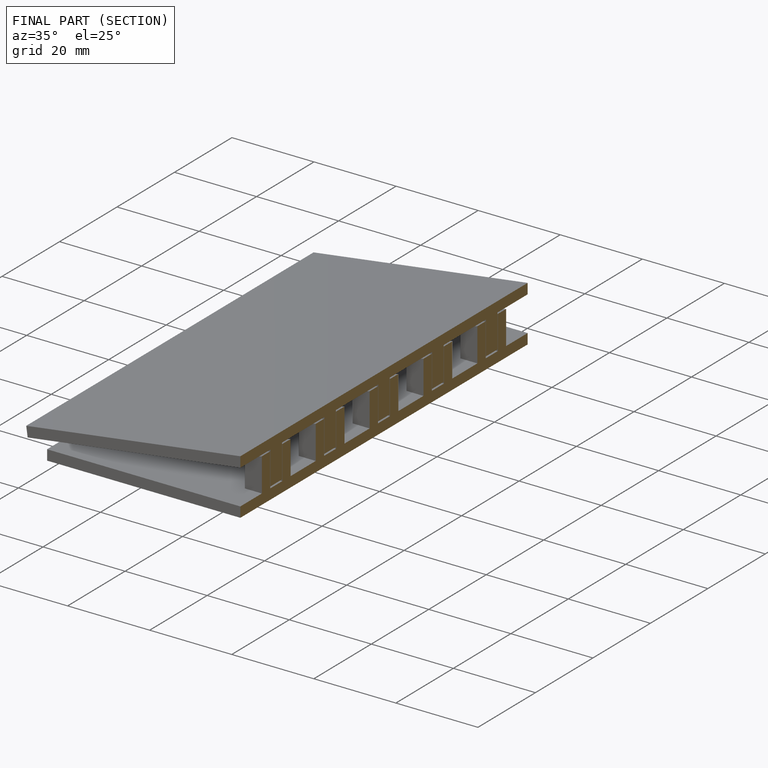
[diagram: finished part — half-section view (interior)]
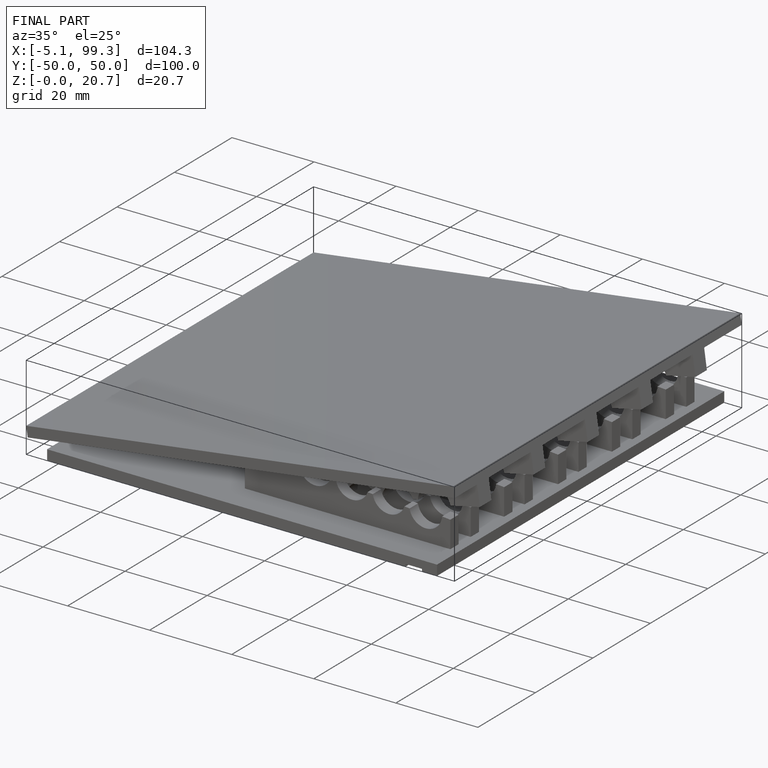
[diagram: finished part — iso view with bounding-box wireframe]
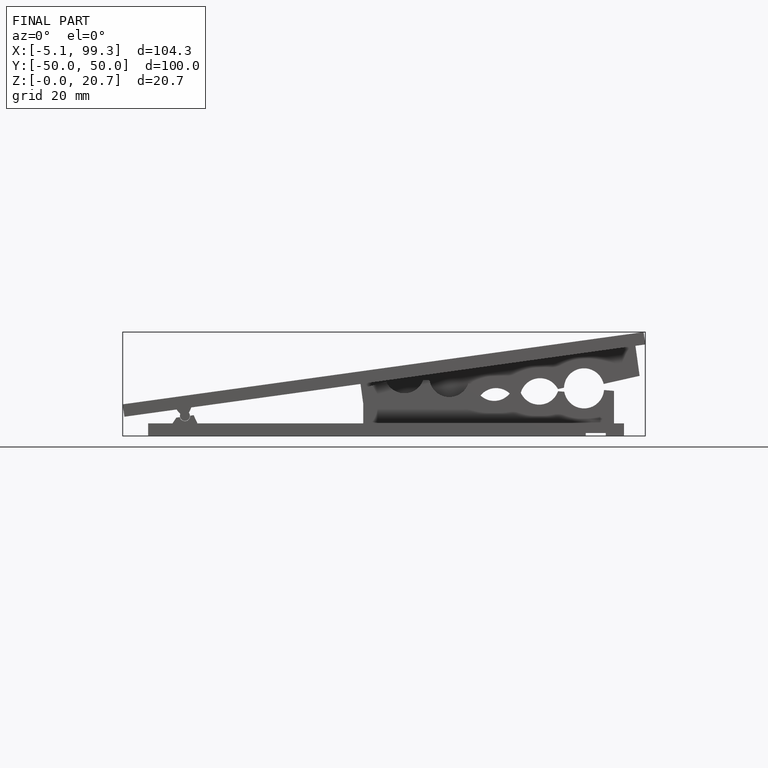
[diagram: finished part — front view with bounding-box wireframe]
